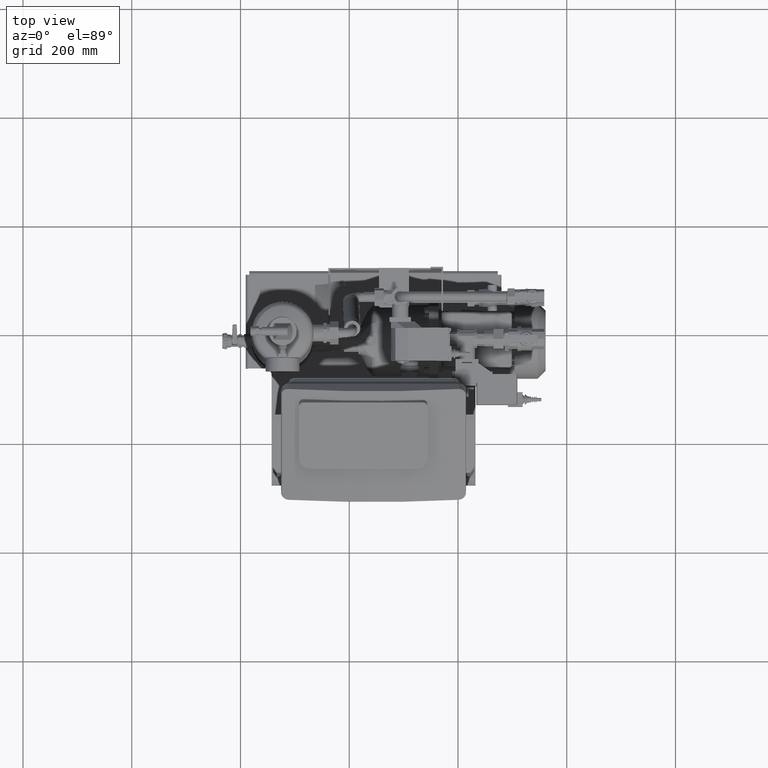
[diagram: clean part render]
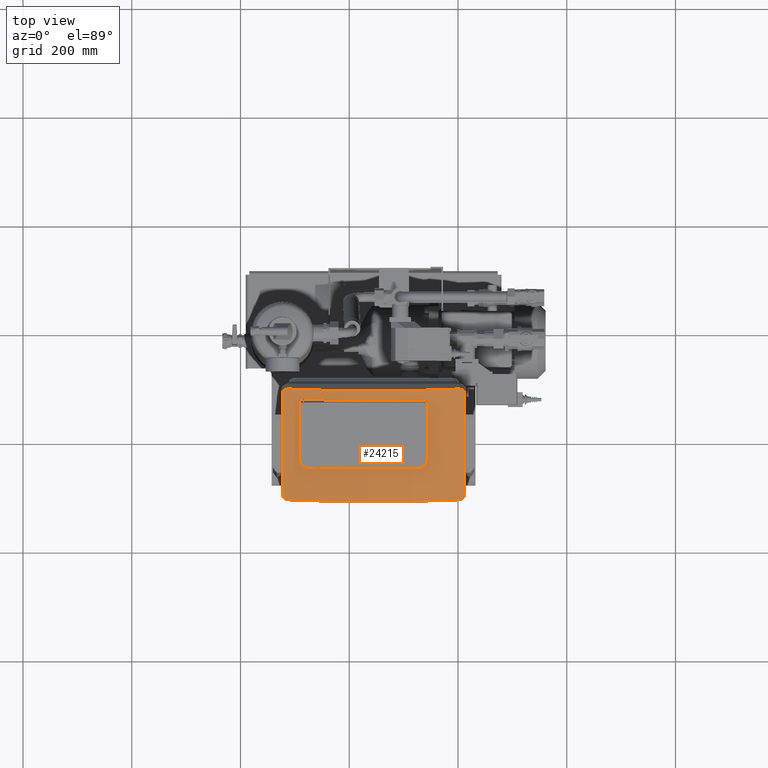
[diagram: same view with one face highlighted and labeled with its STEP entity id]
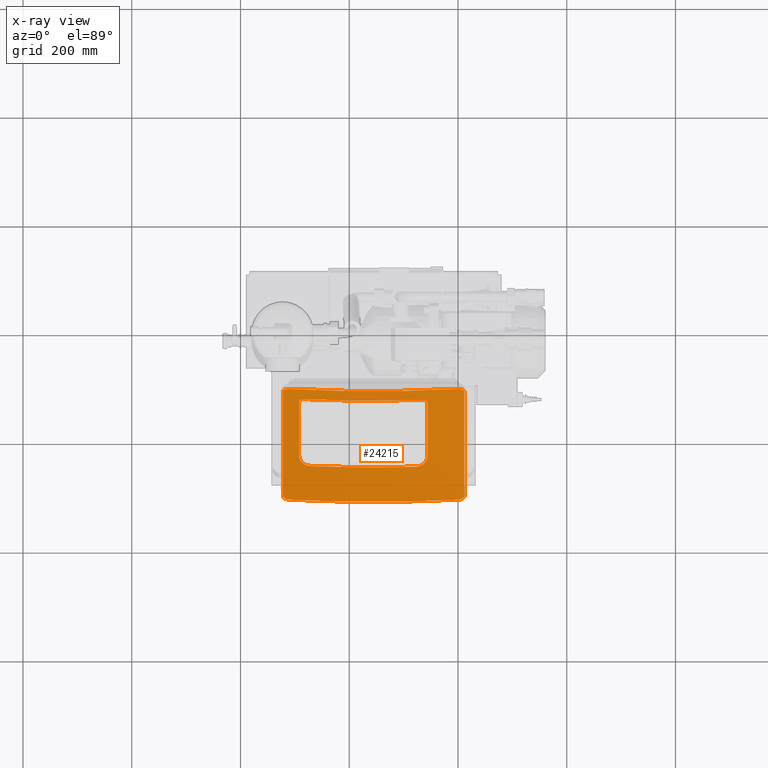
[diagram: x-ray of the same camera — body ghosted, the highlighted face saturated]
A machine part, top view. The second image highlights one B-rep face of the part: STEP entity #24215.
The next image is the same camera in x-ray: the body ghosted, the highlighted face saturated — about 0% of this face is hidden behind the body in this view.
In plain terms, the highlighted cylindrical surface (partial cylindrical patch) has radius 1449.96 mm, axis along (-0, -0.866, -0.5).
Its self-contained STEP definition (entity closure, byte-faithful):
#23693=CARTESIAN_POINT('',(135.24335258335435,-130.3712673011876,667.69481868252217));
#23694=VERTEX_POINT('',#23693);
#23701=CARTESIAN_POINT('',(-83.756647416645635,-128.9344787303709,665.20622787813329));
#23702=VERTEX_POINT('',#23701);
#23703=CARTESIAN_POINT('',(44.712871936889613,593.19612905814802,-585.56067451217427));
#23704=DIRECTION('',(-3.608225E-016,-0.866025403784438,-0.5));
#23705=DIRECTION('',(0.115201393586965,0.496671078007272,-0.8602595417586));
#23706=AXIS2_PLACEMENT_3D('',#23703,#23704,#23705);
#23707=CIRCLE('',#23706,1449.9637499685948);
#23708=EDGE_CURVE('',#23694,#23702,#23707,.T.);
#23725=CARTESIAN_POINT('',(143.74335258335435,-137.45407478374889,662.96260110254741));
#23726=VERTEX_POINT('',#23725);
#23733=CARTESIAN_POINT('',(143.74335258335435,-137.45407478374889,662.96260110254741));
#23734=CARTESIAN_POINT('',(143.74335258335435,-136.52986310840097,663.49619496209777));
#23735=CARTESIAN_POINT('',(143.53007949886018,-135.55152952859115,664.07795222011237));
#23736=CARTESIAN_POINT('',(142.66326701001634,-133.76815608534642,665.17565449873518));
#23737=CARTESIAN_POINT('',(142.00974271079957,-132.96307465607836,665.69154391651921));
#23738=CARTESIAN_POINT('',(140.50109541351202,-131.70578809698421,666.53368716172884));
#23739=CARTESIAN_POINT('',(139.54474857253143,-131.17033213926712,666.91578952058876));
#23740=CARTESIAN_POINT('',(137.44964917335182,-130.48639661574967,667.46746400170309));
#23741=CARTESIAN_POINT('',(136.31089601401453,-130.3378753806924,667.63698217966214));
#23742=CARTESIAN_POINT('',(135.24335258335435,-130.3712673011876,667.69481868252217));
#23743=B_SPLINE_CURVE_WITH_KNOTS('',3,(#23733,#23734,#23735,#23736,#23737,#23738,#23739,#23740,#23741,#23742),.UNSPECIFIED.,.F.,.U.,(4,2,2,2,4),(2.563980270336001,2.88413658606623,3.204292901796459,3.525182002887001,3.846071103977543),.UNSPECIFIED.);
#23744=EDGE_CURVE('',#23726,#23694,#23743,.T.);
#23756=CARTESIAN_POINT('',(143.74335258335435,-232.71686920003734,607.96260110254741));
#23757=VERTEX_POINT('',#23756);
#23764=CARTESIAN_POINT('',(143.74335258335429,-232.71686920003731,607.9626011025473));
#23765=DIRECTION('',(5.167584E-016,0.866025403784439,0.5));
#23766=VECTOR('',#23765,110.0000000000002);
#23767=LINE('',#23764,#23766);
#23768=EDGE_CURVE('',#23757,#23726,#23767,.T.);
#23780=CARTESIAN_POINT('',(122.24335258335437,-251.99215961524661,598.34838343233537));
#23781=VERTEX_POINT('',#23780);
#23788=CARTESIAN_POINT('',(122.24335258335437,-251.99215961524661,598.34838343233537));
#23789=CARTESIAN_POINT('',(123.59368640388693,-251.95600629252365,598.28576404051682));
#23790=CARTESIAN_POINT('',(124.99008269098086,-251.80570493063524,598.28395432239779));
#23791=CARTESIAN_POINT('',(127.76781155730892,-251.25582853801043,598.42048597368057));
#23792=CARTESIAN_POINT('',(129.1491674664473,-250.85635755524575,598.55877172050862));
#23793=CARTESIAN_POINT('',(131.79862096295682,-249.82707052207834,598.97176356575119));
#23794=CARTESIAN_POINT('',(133.06882064290852,-249.19644497067637,599.24680912267206));
#23795=CARTESIAN_POINT('',(135.41790976436158,-247.75533553758058,599.91102622601568));
#23796=CARTESIAN_POINT('',(136.4967330450765,-246.94477635728211,600.30026838232595));
#23797=CARTESIAN_POINT('',(138.40470935454908,-245.23009126904938,601.14904169236252));
#23798=CARTESIAN_POINT('',(139.29939885271455,-244.26764111907008,601.63738188889477));
#23799=CARTESIAN_POINT('',(140.87662017857082,-242.18318384667307,602.72078848100455));
#23800=CARTESIAN_POINT('',(141.55924886651104,-241.06123993677002,603.31583548432127));
#23801=CARTESIAN_POINT('',(142.65564430944204,-238.73148371671348,604.57569014378589));
#23802=CARTESIAN_POINT('',(143.07028573168071,-237.52181565830372,605.24151724302681));
#23803=CARTESIAN_POINT('',(143.6141982477472,-235.09897693149961,606.59752305114228));
#23804=CARTESIAN_POINT('',(143.74335258335435,-233.88579204364365,607.28772318412939));
#23805=CARTESIAN_POINT('',(143.74335258335435,-232.71686920003734,607.96260110254741));
#23806=B_SPLINE_CURVE_WITH_KNOTS('',3,(#23788,#23789,#23790,#23791,#23792,#23793,#23794,#23795,#23796,#23797,#23798,#23799,#23800,#23801,#23802,#23803,#23804,#23805),.UNSPECIFIED.,.F.,.U.,(4,2,2,2,2,2,2,2,4),(3.241327311363783,3.647007814970358,4.052688318576934,4.458368822183509,4.864049325790084,5.268976076840866,5.673902827891649,6.078829578942431,6.483756329993213),.UNSPECIFIED.);
#23807=EDGE_CURVE('',#23781,#23757,#23806,.T.);
#23829=CARTESIAN_POINT('',(211.75071668320896,-306.78987745400809,557.95903050058348));
#23830=VERTEX_POINT('',#23829);
#23850=CARTESIAN_POINT('',(200.74335258335435,-312.03932728061841,556.35312867936625));
#23851=VERTEX_POINT('',#23850);
#23852=CARTESIAN_POINT('',(200.74335258335435,-312.03932728061841,556.35312867936625));
#23853=CARTESIAN_POINT('',(202.5024937672585,-311.94412393365633,556.18823164537719));
#23854=CARTESIAN_POINT('',(204.37916635487835,-311.53616128679164,556.1850685440603));
#23855=CARTESIAN_POINT('',(207.83276453199954,-310.10251231054394,556.56612711614832));
#23856=CARTESIAN_POINT('',(209.40969238343217,-309.07687977408273,556.95053064970978));
#23857=CARTESIAN_POINT('',(211.03709871789619,-307.5702449899602,557.60390139877006));
#23858=CARTESIAN_POINT('',(211.40487491649327,-307.19102428986685,557.77374156142332));
#23859=CARTESIAN_POINT('',(211.75071668320896,-306.78987745400809,557.95903050058348));
#23860=B_SPLINE_CURVE_WITH_KNOTS('',3,(#23852,#23853,#23854,#23855,#23856,#23857,#23858,#23859),.UNSPECIFIED.,.F.,.U.,(4,2,2,4),(2.115148401747748,2.6459731536762,3.176797905604652,3.339569850418487),.UNSPECIFIED.);
#23861=EDGE_CURVE('',#23851,#23830,#23860,.T.);
#23897=CARTESIAN_POINT('',(-122.32497271007468,-114.33855130771443,669.07085547035183));
#23898=VERTEX_POINT('',#23897);
#23918=CARTESIAN_POINT('',(-111.25664741664581,-110.25870672436204,672.85884189315345));
#23919=VERTEX_POINT('',#23918);
#23920=CARTESIAN_POINT('',(-111.25664741664569,-110.25870672436204,672.85884189315345));
#23921=CARTESIAN_POINT('',(-113.01578788654238,-110.16354104760049,672.6940101058658));
#23922=CARTESIAN_POINT('',(-114.8924593252119,-110.36482308589726,672.33919233807819));
#23923=CARTESIAN_POINT('',(-118.34605420433137,-111.41172600068333,671.28827487138619));
#23924=CARTESIAN_POINT('',(-119.92297991492659,-112.25747744085416,670.59231270626265));
#23925=CARTESIAN_POINT('',(-121.57290731082547,-113.59491844994128,669.60074138442769));
#23926=CARTESIAN_POINT('',(-121.96147804396809,-113.95319518116278,669.34201821085594));
#23927=CARTESIAN_POINT('',(-122.32497271007468,-114.33855130771443,669.07085547035183));
#23928=B_SPLINE_CURVE_WITH_KNOTS('',3,(#23920,#23921,#23922,#23923,#23924,#23925,#23926,#23927),.UNSPECIFIED.,.F.,.U.,(4,2,2,4),(6.346384960659418,6.877207067891773,7.408029175124126,7.58039980788059),.UNSPECIFIED.);
#23929=EDGE_CURVE('',#23919,#23898,#23928,.T.);
#23974=CARTESIAN_POINT('',(-111.25664741664586,-312.04262580613636,556.35884189315345));
#23975=VERTEX_POINT('',#23974);
#23982=CARTESIAN_POINT('',(-122.32497271007473,-306.72221104312302,557.99809773442826));
#23983=VERTEX_POINT('',#23982);
#23984=CARTESIAN_POINT('',(-122.32497271007473,-306.72221104312302,557.99809773442826));
#23985=CARTESIAN_POINT('',(-121.96147804396814,-307.14972292823541,557.79995090958244));
#23986=CARTESIAN_POINT('',(-121.57290731082553,-307.55292213470716,557.61903574554583));
#23987=CARTESIAN_POINT('',(-119.92297991492664,-309.08036859362392,556.95656351653076));
#23988=CARTESIAN_POINT('',(-118.34605420433142,-310.10596522877881,556.5721023666174));
#23989=CARTESIAN_POINT('',(-114.89245932521196,-311.53953790960804,556.19091658046261));
#23990=CARTESIAN_POINT('',(-113.01578788654255,-311.94746012937458,556.1940101058658));
#23991=CARTESIAN_POINT('',(-111.25664741664586,-312.04262580613613,556.35884189315345));
#23992=B_SPLINE_CURVE_WITH_KNOTS('',3,(#23984,#23985,#23986,#23987,#23988,#23989,#23990,#23991),.UNSPECIFIED.,.F.,.U.,(4,2,2,4),(0.882082648561826,1.054453281318303,1.585275388550654,2.116097495783006),.UNSPECIFIED.);
#23993=EDGE_CURVE('',#23983,#23975,#23992,.T.);
#24042=CARTESIAN_POINT('',(200.74335258335412,-110.25540819884409,672.85312867936625));
#24043=VERTEX_POINT('',#24042);
#24050=CARTESIAN_POINT('',(211.75071668320919,-114.27088488530708,669.10992268423865));
#24051=VERTEX_POINT('',#24050);
#24052=CARTESIAN_POINT('',(211.75071668320919,-114.27088488530708,669.10992268423865));
#24053=CARTESIAN_POINT('',(211.4048749164935,-113.90984653902481,669.36468156515991));
#24054=CARTESIAN_POINT('',(211.03709871789619,-113.57315029353722,669.60817624375511));
#24055=CARTESIAN_POINT('',(209.40969238343217,-112.25399723470017,670.58627486650028));
#24056=CARTESIAN_POINT('',(207.83276453199954,-111.40827774110076,671.28229693124297));
#24057=CARTESIAN_POINT('',(204.37916635487835,-110.36144684921911,672.33334407873883));
#24058=CARTESIAN_POINT('',(202.50249376725827,-110.1602048518819,672.68823164537719));
#24059=CARTESIAN_POINT('',(200.74335258335412,-110.25540819884409,672.85312867936625));
#24060=B_SPLINE_CURVE_WITH_KNOTS('',3,(#24052,#24053,#24054,#24055,#24056,#24057,#24058,#24059),.UNSPECIFIED.,.F.,.U.,(4,2,2,4),(5.122932058488319,5.285704003302159,5.816528755230618,6.347353507159075),.UNSPECIFIED.);
#24061=EDGE_CURVE('',#24051,#24043,#24060,.T.);
#24091=CARTESIAN_POINT('',(44.712871936889613,408.73271805206252,-692.06067451217427));
#24092=DIRECTION('',(-3.608225E-016,-0.866025403784438,-0.5));
#24093=DIRECTION('',(0.115201393586965,0.496671078007272,-0.8602595417586));
#24094=AXIS2_PLACEMENT_3D('',#24091,#24092,#24093);
#24095=CIRCLE('',#24094,1449.9637499685948);
#24096=EDGE_CURVE('',#23851,#23975,#24095,.T.);
#24114=CARTESIAN_POINT('',(44.712871936889613,610.51663713383687,-575.56067451217427));
#24115=DIRECTION('',(-3.608225E-016,-0.866025403784438,-0.5));
#24116=DIRECTION('',(0.115201393586965,0.496671078007272,-0.8602595417586));
#24117=AXIS2_PLACEMENT_3D('',#24114,#24115,#24116);
#24118=CIRCLE('',#24117,1449.9637499685948);
#24119=EDGE_CURVE('',#24043,#23919,#24118,.T.);
#24131=CARTESIAN_POINT('',(44.712871936889613,610.51663713383687,-575.56067451217427));
#24132=DIRECTION('',(-3.742872E-016,-0.866025403784439,-0.5));
#24133=DIRECTION('',(0.115201393586965,0.496671078007272,-0.8602595417586));
#24134=AXIS2_PLACEMENT_3D('',#24131,#24132,#24133);
#24135=CYLINDRICAL_SURFACE('',#24134,1449.9637499685948);
#24136=ORIENTED_EDGE('',*,*,#23861,.T.);
#24137=CARTESIAN_POINT('',(211.75071668320919,-114.27088488530708,669.10992268423865));
#24138=DIRECTION('',(-3.835558E-016,-0.866025403784438,-0.5));
#24139=VECTOR('',#24138,222.30178436731023);
#24140=LINE('',#24137,#24139);
#24141=EDGE_CURVE('',#24051,#23830,#24140,.T.);
#24142=ORIENTED_EDGE('',*,*,#24141,.F.);
#24143=ORIENTED_EDGE('',*,*,#24061,.T.);
#24144=ORIENTED_EDGE('',*,*,#24119,.T.);
#24145=ORIENTED_EDGE('',*,*,#23929,.T.);
#24146=CARTESIAN_POINT('',(-122.32497271007468,-114.33855130771443,669.07085547035183));
#24147=DIRECTION('',(-3.838256E-016,-0.866025403784439,-0.5));
#24148=VECTOR('',#24147,222.14551547184706);
#24149=LINE('',#24146,#24148);
#24150=EDGE_CURVE('',#23898,#23983,#24149,.T.);
#24151=ORIENTED_EDGE('',*,*,#24150,.T.);
#24152=ORIENTED_EDGE('',*,*,#23993,.T.);
#24153=ORIENTED_EDGE('',*,*,#24096,.F.);
#24154=EDGE_LOOP('',(#24136,#24142,#24143,#24144,#24145,#24151,#24152,#24153));
#24155=FACE_OUTER_BOUND('',#24154,.T.);
#24156=CARTESIAN_POINT('',(-92.256647416645578,-135.90503778969619,660.2795903260444));
#24157=VERTEX_POINT('',#24156);
#24158=CARTESIAN_POINT('',(-83.756647416645635,-128.9344787303709,665.20622787813329));
#24159=CARTESIAN_POINT('',(-84.824367424174667,-128.88699096476037,665.12397665535798));
#24160=CARTESIAN_POINT('',(-85.963418606940465,-129.02051441523636,664.92837228807991));
#24161=CARTESIAN_POINT('',(-88.059385980824615,-129.67730462297814,664.32839306364895));
#24162=CARTESIAN_POINT('',(-89.016300070392205,-130.20062275336775,663.92406710459181));
#24163=CARTESIAN_POINT('',(-90.524304216234427,-131.43851284398332,663.04716588238819));
#24164=CARTESIAN_POINT('',(-91.177216570651225,-132.23446064753946,662.51667527452071));
#24165=CARTESIAN_POINT('',(-92.043402623629831,-134.0056381820057,661.3996312819761));
#24166=CARTESIAN_POINT('',(-92.256647416645578,-134.98091625844452,660.81313214087652));
#24167=CARTESIAN_POINT('',(-92.256647416645578,-135.90503778969619,660.2795903260444));
#24168=B_SPLINE_CURVE_WITH_KNOTS('',3,(#24158,#24159,#24160,#24161,#24162,#24163,#24164,#24165,#24166,#24167),.UNSPECIFIED.,.F.,.U.,(4,2,2,2,4),(-1.283411659669927,-0.961830918734223,-0.640250177798519,-0.32012508889926,0.0),.UNSPECIFIED.);
#24169=EDGE_CURVE('',#23702,#24157,#24168,.T.);
#24170=ORIENTED_EDGE('',*,*,#24169,.F.);
#24171=ORIENTED_EDGE('',*,*,#23708,.F.);
#24172=ORIENTED_EDGE('',*,*,#23744,.F.);
#24173=ORIENTED_EDGE('',*,*,#23768,.F.);
#24174=ORIENTED_EDGE('',*,*,#23807,.F.);
#24175=CARTESIAN_POINT('',(-70.756647416645862,-250.72675925086142,596.15664570930414));
#24176=VERTEX_POINT('',#24175);
#24177=CARTESIAN_POINT('',(44.712871936889613,471.95257252832641,-655.56067451217427));
#24178=DIRECTION('',(2.220446E-016,0.866025403784438,0.5));
#24179=DIRECTION('',(0.115201393586965,0.496671078007272,-0.8602595417586));
#24180=AXIS2_PLACEMENT_3D('',#24177,#24178,#24179);
#24181=CIRCLE('',#24180,1449.9637499685948);
#24182=EDGE_CURVE('',#24176,#23781,#24181,.T.);
#24183=ORIENTED_EDGE('',*,*,#24182,.F.);
#24184=CARTESIAN_POINT('',(-92.256647416645748,-231.16783220598452,605.2795903260444));
#24185=VERTEX_POINT('',#24184);
#24186=CARTESIAN_POINT('',(-92.256647416645748,-231.16783220598452,605.2795903260444));
#24187=CARTESIAN_POINT('',(-92.256647416645748,-232.33666657875122,604.60476348628947));
#24188=CARTESIAN_POINT('',(-92.127510475727419,-233.55137998518038,603.91762070545599));
#24189=CARTESIAN_POINT('',(-91.583808469096581,-235.98084359528642,602.57436545127564));
#24190=CARTESIAN_POINT('',(-91.169360411529439,-237.19560657564526,601.9182287282797));
#24191=CARTESIAN_POINT('',(-90.073706185716603,-239.53888733320585,600.68393748562585));
#24192=CARTESIAN_POINT('',(-89.391624242347504,-240.66927846619208,600.10478003729827));
#24193=CARTESIAN_POINT('',(-87.816022523987996,-242.77332716304014,599.05799823760162));
#24194=CARTESIAN_POINT('',(-86.922407701166819,-243.74692384294227,598.59039457631548));
#24195=CARTESIAN_POINT('',(-85.015264534830791,-245.48730455928492,597.78487630078268));
#24196=CARTESIAN_POINT('',(-83.935843445763496,-246.31299842558863,597.41984563323422));
#24197=CARTESIAN_POINT('',(-81.585611065793088,-247.78649704612874,596.8086332832728));
#24198=CARTESIAN_POINT('',(-80.314866574347931,-248.43437794311174,596.5623783135494));
#24199=CARTESIAN_POINT('',(-77.664412825815404,-249.49933915255374,596.2095805749716));
#24200=CARTESIAN_POINT('',(-76.28260860525215,-249.91725454483984,596.1027468510174));
#24201=CARTESIAN_POINT('',(-73.504070098461668,-250.50404065724948,596.02952715894924));
#24202=CARTESIAN_POINT('',(-72.10731228703041,-250.67280702871633,596.06319771936774));
#24203=CARTESIAN_POINT('',(-70.756647416645635,-250.72675925086142,596.15664570930414));
#24204=B_SPLINE_CURVE_WITH_KNOTS('',3,(#24186,#24187,#24188,#24189,#24190,#24191,#24192,#24193,#24194,#24195,#24196,#24197,#24198,#24199,#24200,#24201,#24202,#24203),.UNSPECIFIED.,.F.,.U.,(4,2,2,2,2,2,2,2,4),(0.0,0.404896103852944,0.809792207705887,1.214688311558831,1.619584415411775,2.026074890708548,2.432565366005321,2.839055841302093,3.245546316598866),.UNSPECIFIED.);
#24205=EDGE_CURVE('',#24185,#24176,#24204,.T.);
#24206=ORIENTED_EDGE('',*,*,#24205,.F.);
#24207=CARTESIAN_POINT('',(-92.256647416645592,-135.90503778969619,660.2795903260444));
#24208=DIRECTION('',(-3.875688E-016,-0.866025403784439,-0.5));
#24209=VECTOR('',#24208,110.00000000000004);
#24210=LINE('',#24207,#24209);
#24211=EDGE_CURVE('',#24157,#24185,#24210,.T.);
#24212=ORIENTED_EDGE('',*,*,#24211,.F.);
#24213=EDGE_LOOP('',(#24170,#24171,#24172,#24173,#24174,#24183,#24206,#24212));
#24214=FACE_BOUND('',#24213,.T.);
#24215=ADVANCED_FACE('',(#24155,#24214),#24135,.T.);